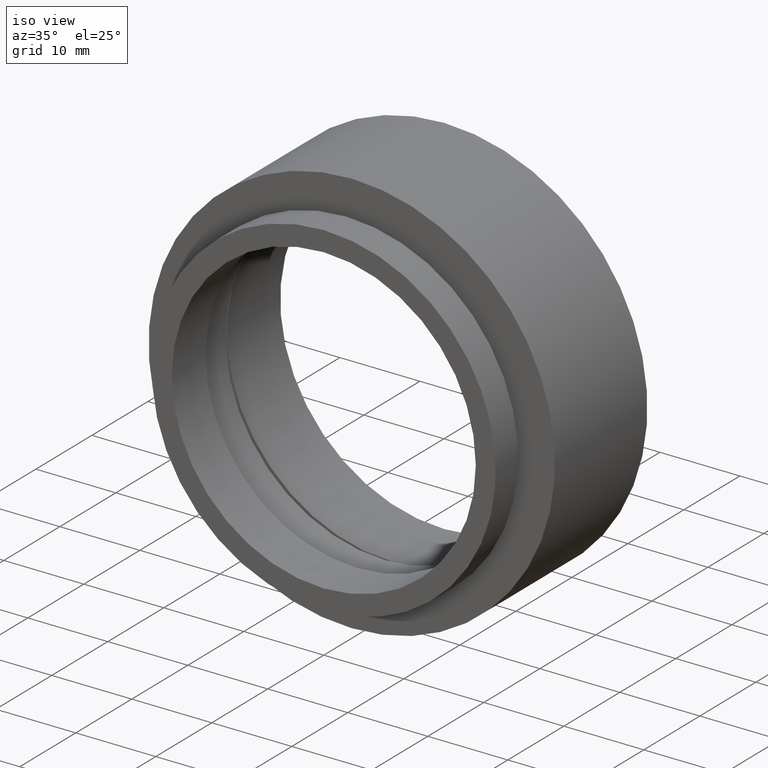
[diagram: clean part render]
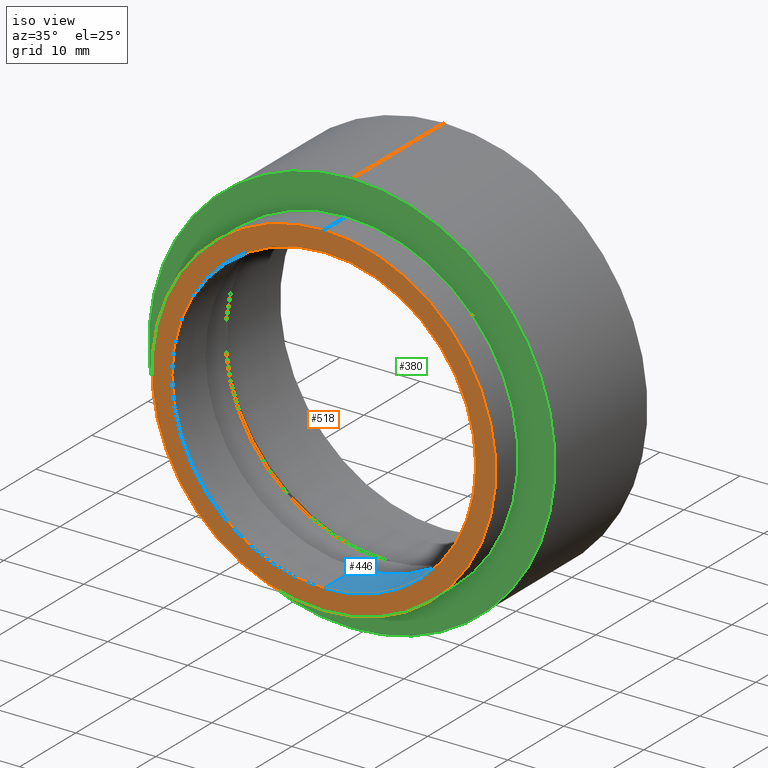
[diagram: same view with three faces highlighted in distinct colors, each labeled with its STEP entity id]
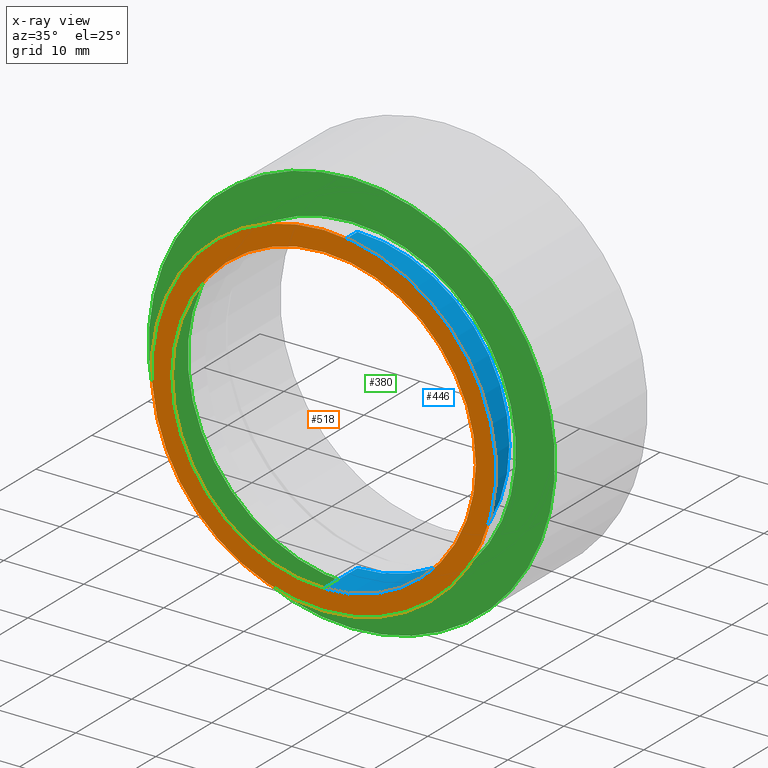
[diagram: x-ray of the same camera — body ghosted, the three highlighted faces saturated]
A machine part, iso view with three faces highlighted in distinct colors.
The next image is the same camera in x-ray (body ghosted, the three faces saturated) — at least one of them is partly hidden behind the body in this view.
Their STEP definitions:

[orange] entity #518 — the highlighted planar face has unit normal (0, -1, -0).
#6 = CARTESIAN_POINT ( 'NONE',  ( 19.00000000000000000, -3.061616997868383600E-016, 0.0000000000000000000 ) ) ;
#8 = ORIENTED_EDGE ( 'NONE', *, *, #347, .F. ) ;
#24 = DIRECTION ( 'NONE',  ( 0.0000000000000000000, 0.0000000000000000000, -1.000000000000000000 ) ) ;
#29 = EDGE_LOOP ( 'NONE', ( #8, #247 ) ) ;
#81 = CARTESIAN_POINT ( 'NONE',  ( 2.632990618166809200E-015, 0.0000000000000000000, 21.50000000000000000 ) ) ;
#100 = EDGE_CURVE ( 'NONE', #250, #307, #274, .T. ) ;
#111 = FACE_OUTER_BOUND ( 'NONE', #588, .T. ) ;
#135 = FACE_BOUND ( 'NONE', #29, .T. ) ;
#139 = DIRECTION ( 'NONE',  ( 0.0000000000000000000, 0.0000000000000000000, -1.000000000000000000 ) ) ;
#143 = AXIS2_PLACEMENT_3D ( 'NONE', #435, #187, #292 ) ;
#159 = CIRCLE ( 'NONE', #639, 21.50000000000000000 ) ;
#182 = DIRECTION ( 'NONE',  ( 0.0000000000000000000, -1.000000000000000000, -0.0000000000000000000 ) ) ;
#187 = DIRECTION ( 'NONE',  ( -0.0000000000000000000, -1.000000000000000000, -0.0000000000000000000 ) ) ;
#191 = DIRECTION ( 'NONE',  ( 0.0000000000000000000, 0.0000000000000000000, -1.000000000000000000 ) ) ;
#205 = DIRECTION ( 'NONE',  ( -0.0000000000000000000, -1.000000000000000000, -0.0000000000000000000 ) ) ;
#226 = CIRCLE ( 'NONE', #661, 19.00000000000000000 ) ;
#247 = ORIENTED_EDGE ( 'NONE', *, *, #366, .F. ) ;
#250 = VERTEX_POINT ( 'NONE', #81 ) ;
#268 = AXIS2_PLACEMENT_3D ( 'NONE', #6, #182, #620 ) ;
#274 = CIRCLE ( 'NONE', #143, 21.50000000000000000 ) ;
#292 = DIRECTION ( 'NONE',  ( 0.0000000000000000000, 0.0000000000000000000, -1.000000000000000000 ) ) ;
#302 = CARTESIAN_POINT ( 'NONE',  ( 2.326828918379971000E-015, -6.123233995736767300E-016, 19.00000000000000000 ) ) ;
#307 = VERTEX_POINT ( 'NONE', #636 ) ;
#319 = CARTESIAN_POINT ( 'NONE',  ( 0.0000000000000000000, -6.123233995736767300E-016, -19.00000000000000000 ) ) ;
#347 = EDGE_CURVE ( 'NONE', #402, #426, #226, .T. ) ;
#366 = EDGE_CURVE ( 'NONE', #426, #402, #374, .T. ) ;
#371 = ORIENTED_EDGE ( 'NONE', *, *, #524, .T. ) ;
#374 = CIRCLE ( 'NONE', #487, 19.00000000000000000 ) ;
#402 = VERTEX_POINT ( 'NONE', #319 ) ;
#424 = CARTESIAN_POINT ( 'NONE',  ( 0.0000000000000000000, -6.123233995736767300E-016, 0.0000000000000000000 ) ) ;
#426 = VERTEX_POINT ( 'NONE', #302 ) ;
#435 = CARTESIAN_POINT ( 'NONE',  ( 0.0000000000000000000, 0.0000000000000000000, 0.0000000000000000000 ) ) ;
#467 = DIRECTION ( 'NONE',  ( -0.0000000000000000000, -1.000000000000000000, -0.0000000000000000000 ) ) ;
#487 = AXIS2_PLACEMENT_3D ( 'NONE', #539, #205, #139 ) ;
#518 = ADVANCED_FACE ( 'NONE', ( #111, #135 ), #529, .T. ) ;
#522 = ORIENTED_EDGE ( 'NONE', *, *, #100, .T. ) ;
#524 = EDGE_CURVE ( 'NONE', #307, #250, #159, .T. ) ;
#529 = PLANE ( 'NONE',  #268 ) ;
#539 = CARTESIAN_POINT ( 'NONE',  ( 0.0000000000000000000, -6.123233995736767300E-016, 0.0000000000000000000 ) ) ;
#575 = DIRECTION ( 'NONE',  ( -0.0000000000000000000, -1.000000000000000000, -0.0000000000000000000 ) ) ;
#588 = EDGE_LOOP ( 'NONE', ( #371, #522 ) ) ;
#620 = DIRECTION ( 'NONE',  ( 0.0000000000000000000, 0.0000000000000000000, -1.000000000000000000 ) ) ;
#636 = CARTESIAN_POINT ( 'NONE',  ( 0.0000000000000000000, 0.0000000000000000000, -21.50000000000000000 ) ) ;
#639 = AXIS2_PLACEMENT_3D ( 'NONE', #646, #467, #24 ) ;
#646 = CARTESIAN_POINT ( 'NONE',  ( 0.0000000000000000000, 0.0000000000000000000, 0.0000000000000000000 ) ) ;
#661 = AXIS2_PLACEMENT_3D ( 'NONE', #424, #575, #191 ) ;

[blue] entity #446 — the highlighted cylindrical surface (partial cylindrical patch) has radius 19 mm, axis along (-0, -1, -0).
#46 = CIRCLE ( 'NONE', #434, 19.00000000000000000 ) ;
#75 = ORIENTED_EDGE ( 'NONE', *, *, #221, .T. ) ;
#98 = VERTEX_POINT ( 'NONE', #531 ) ;
#121 = CARTESIAN_POINT ( 'NONE',  ( 0.0000000000000000000, 0.0000000000000000000, -19.00000000000000000 ) ) ;
#138 = CYLINDRICAL_SURFACE ( 'NONE', #169, 19.00000000000000000 ) ;
#166 = ORIENTED_EDGE ( 'NONE', *, *, #375, .F. ) ;
#169 = AXIS2_PLACEMENT_3D ( 'NONE', #263, #537, #317 ) ;
#177 = ORIENTED_EDGE ( 'NONE', *, *, #597, .F. ) ;
#188 = DIRECTION ( 'NONE',  ( -0.0000000000000000000, -1.000000000000000000, -0.0000000000000000000 ) ) ;
#191 = DIRECTION ( 'NONE',  ( 0.0000000000000000000, 0.0000000000000000000, -1.000000000000000000 ) ) ;
#221 = EDGE_CURVE ( 'NONE', #98, #402, #521, .T. ) ;
#226 = CIRCLE ( 'NONE', #661, 19.00000000000000000 ) ;
#249 = VECTOR ( 'NONE', #622, 1000.000000000000000 ) ;
#263 = CARTESIAN_POINT ( 'NONE',  ( 0.0000000000000000000, 0.0000000000000000000, 0.0000000000000000000 ) ) ;
#279 = EDGE_LOOP ( 'NONE', ( #166, #177, #75, #280 ) ) ;
#280 = ORIENTED_EDGE ( 'NONE', *, *, #347, .T. ) ;
#282 = FACE_OUTER_BOUND ( 'NONE', #279, .T. ) ;
#302 = CARTESIAN_POINT ( 'NONE',  ( 2.326828918379971000E-015, -6.123233995736767300E-016, 19.00000000000000000 ) ) ;
#317 = DIRECTION ( 'NONE',  ( 0.0000000000000000000, 0.0000000000000000000, -1.000000000000000000 ) ) ;
#319 = CARTESIAN_POINT ( 'NONE',  ( 0.0000000000000000000, -6.123233995736767300E-016, -19.00000000000000000 ) ) ;
#323 = LINE ( 'NONE', #541, #249 ) ;
#347 = EDGE_CURVE ( 'NONE', #402, #426, #226, .T. ) ;
#351 = CARTESIAN_POINT ( 'NONE',  ( 2.326828918379971000E-015, 5.999999999999999100, 19.00000000000000000 ) ) ;
#375 = EDGE_CURVE ( 'NONE', #647, #426, #323, .T. ) ;
#402 = VERTEX_POINT ( 'NONE', #319 ) ;
#410 = CARTESIAN_POINT ( 'NONE',  ( 0.0000000000000000000, 5.999999999999999100, 0.0000000000000000000 ) ) ;
#424 = CARTESIAN_POINT ( 'NONE',  ( 0.0000000000000000000, -6.123233995736767300E-016, 0.0000000000000000000 ) ) ;
#425 = DIRECTION ( 'NONE',  ( -0.0000000000000000000, -1.000000000000000000, -0.0000000000000000000 ) ) ;
#426 = VERTEX_POINT ( 'NONE', #302 ) ;
#434 = AXIS2_PLACEMENT_3D ( 'NONE', #410, #425, #652 ) ;
#446 = ADVANCED_FACE ( 'NONE', ( #282 ), #138, .F. ) ;
#499 = VECTOR ( 'NONE', #188, 1000.000000000000000 ) ;
#521 = LINE ( 'NONE', #121, #499 ) ;
#531 = CARTESIAN_POINT ( 'NONE',  ( 0.0000000000000000000, 5.999999999999999100, -19.00000000000000000 ) ) ;
#537 = DIRECTION ( 'NONE',  ( -0.0000000000000000000, -1.000000000000000000, -0.0000000000000000000 ) ) ;
#541 = CARTESIAN_POINT ( 'NONE',  ( 2.326828918379971000E-015, 0.0000000000000000000, 19.00000000000000000 ) ) ;
#575 = DIRECTION ( 'NONE',  ( -0.0000000000000000000, -1.000000000000000000, -0.0000000000000000000 ) ) ;
#597 = EDGE_CURVE ( 'NONE', #98, #647, #46, .T. ) ;
#622 = DIRECTION ( 'NONE',  ( -0.0000000000000000000, -1.000000000000000000, -0.0000000000000000000 ) ) ;
#647 = VERTEX_POINT ( 'NONE', #351 ) ;
#652 = DIRECTION ( 'NONE',  ( 0.0000000000000000000, 0.0000000000000000000, -1.000000000000000000 ) ) ;
#661 = AXIS2_PLACEMENT_3D ( 'NONE', #424, #575, #191 ) ;

[green] entity #380 — the highlighted planar face has unit normal (0, -1, -0).
#1 = EDGE_CURVE ( 'NONE', #7, #657, #207, .T. ) ;
#7 = VERTEX_POINT ( 'NONE', #486 ) ;
#16 = AXIS2_PLACEMENT_3D ( 'NONE', #653, #438, #287 ) ;
#32 = CARTESIAN_POINT ( 'NONE',  ( 0.0000000000000000000, 5.000000000000000000, 0.0000000000000000000 ) ) ;
#38 = VERTEX_POINT ( 'NONE', #362 ) ;
#55 = EDGE_LOOP ( 'NONE', ( #288, #364 ) ) ;
#60 = EDGE_CURVE ( 'NONE', #38, #106, #215, .T. ) ;
#68 = DIRECTION ( 'NONE',  ( 0.0000000000000000000, -1.000000000000000000, -0.0000000000000000000 ) ) ;
#76 = CIRCLE ( 'NONE', #530, 25.39999999999999900 ) ;
#85 = PLANE ( 'NONE',  #656 ) ;
#106 = VERTEX_POINT ( 'NONE', #519 ) ;
#120 = AXIS2_PLACEMENT_3D ( 'NONE', #560, #298, #141 ) ;
#141 = DIRECTION ( 'NONE',  ( 0.0000000000000000000, 0.0000000000000000000, -1.000000000000000000 ) ) ;
#207 = CIRCLE ( 'NONE', #547, 20.50000000000000000 ) ;
#209 = FACE_BOUND ( 'NONE', #469, .T. ) ;
#212 = FACE_OUTER_BOUND ( 'NONE', #55, .T. ) ;
#215 = CIRCLE ( 'NONE', #16, 25.39999999999999900 ) ;
#217 = CARTESIAN_POINT ( 'NONE',  ( 20.50000000000000000, 4.999999999999999100, 0.0000000000000000000 ) ) ;
#246 = CIRCLE ( 'NONE', #120, 20.50000000000000000 ) ;
#257 = DIRECTION ( 'NONE',  ( 0.0000000000000000000, 0.0000000000000000000, -1.000000000000000000 ) ) ;
#287 = DIRECTION ( 'NONE',  ( 0.0000000000000000000, 0.0000000000000000000, -1.000000000000000000 ) ) ;
#288 = ORIENTED_EDGE ( 'NONE', *, *, #551, .T. ) ;
#298 = DIRECTION ( 'NONE',  ( -0.0000000000000000000, -1.000000000000000000, -0.0000000000000000000 ) ) ;
#311 = CARTESIAN_POINT ( 'NONE',  ( 0.0000000000000000000, 4.999999999999999100, 0.0000000000000000000 ) ) ;
#362 = CARTESIAN_POINT ( 'NONE',  ( 3.110602869834276900E-015, 5.000000000000000000, 25.39999999999999900 ) ) ;
#364 = ORIENTED_EDGE ( 'NONE', *, *, #60, .T. ) ;
#376 = DIRECTION ( 'NONE',  ( 0.0000000000000000000, 0.0000000000000000000, -1.000000000000000000 ) ) ;
#377 = EDGE_CURVE ( 'NONE', #657, #7, #246, .T. ) ;
#380 = ADVANCED_FACE ( 'NONE', ( #212, #209 ), #85, .T. ) ;
#393 = DIRECTION ( 'NONE',  ( -0.0000000000000000000, -1.000000000000000000, -0.0000000000000000000 ) ) ;
#438 = DIRECTION ( 'NONE',  ( -0.0000000000000000000, -1.000000000000000000, -0.0000000000000000000 ) ) ;
#462 = CARTESIAN_POINT ( 'NONE',  ( 2.510525938252074500E-015, 4.999999999999999100, 20.50000000000000000 ) ) ;
#469 = EDGE_LOOP ( 'NONE', ( #650, #674 ) ) ;
#486 = CARTESIAN_POINT ( 'NONE',  ( 0.0000000000000000000, 4.999999999999999100, -20.50000000000000000 ) ) ;
#519 = CARTESIAN_POINT ( 'NONE',  ( 0.0000000000000000000, 5.000000000000000000, -25.39999999999999900 ) ) ;
#530 = AXIS2_PLACEMENT_3D ( 'NONE', #32, #552, #257 ) ;
#547 = AXIS2_PLACEMENT_3D ( 'NONE', #311, #393, #573 ) ;
#551 = EDGE_CURVE ( 'NONE', #106, #38, #76, .T. ) ;
#552 = DIRECTION ( 'NONE',  ( -0.0000000000000000000, -1.000000000000000000, -0.0000000000000000000 ) ) ;
#560 = CARTESIAN_POINT ( 'NONE',  ( 0.0000000000000000000, 4.999999999999999100, 0.0000000000000000000 ) ) ;
#573 = DIRECTION ( 'NONE',  ( 0.0000000000000000000, 0.0000000000000000000, -1.000000000000000000 ) ) ;
#650 = ORIENTED_EDGE ( 'NONE', *, *, #1, .F. ) ;
#653 = CARTESIAN_POINT ( 'NONE',  ( 0.0000000000000000000, 5.000000000000000000, 0.0000000000000000000 ) ) ;
#656 = AXIS2_PLACEMENT_3D ( 'NONE', #217, #68, #376 ) ;
#657 = VERTEX_POINT ( 'NONE', #462 ) ;
#674 = ORIENTED_EDGE ( 'NONE', *, *, #377, .F. ) ;